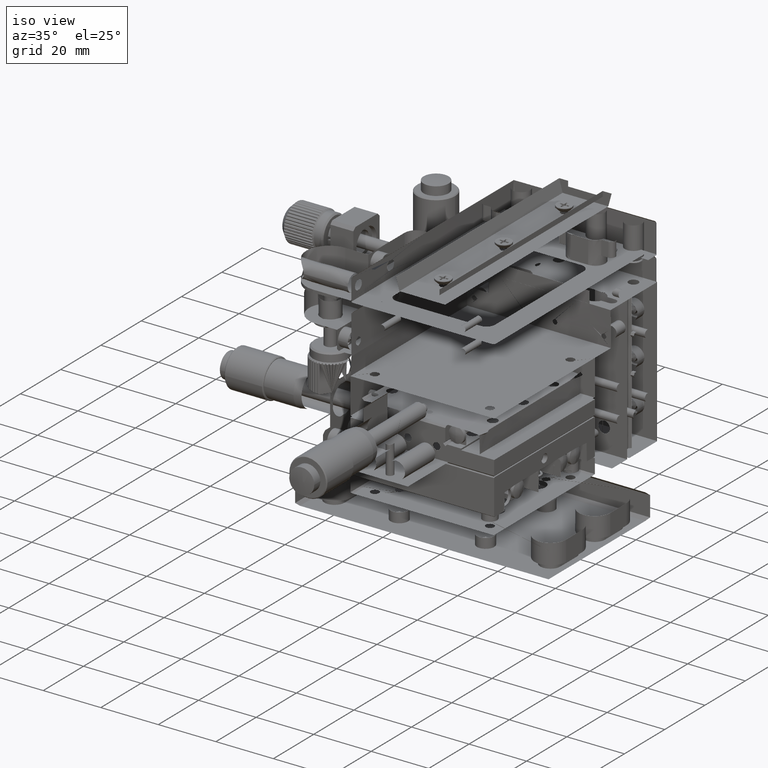
[diagram: clean part render]
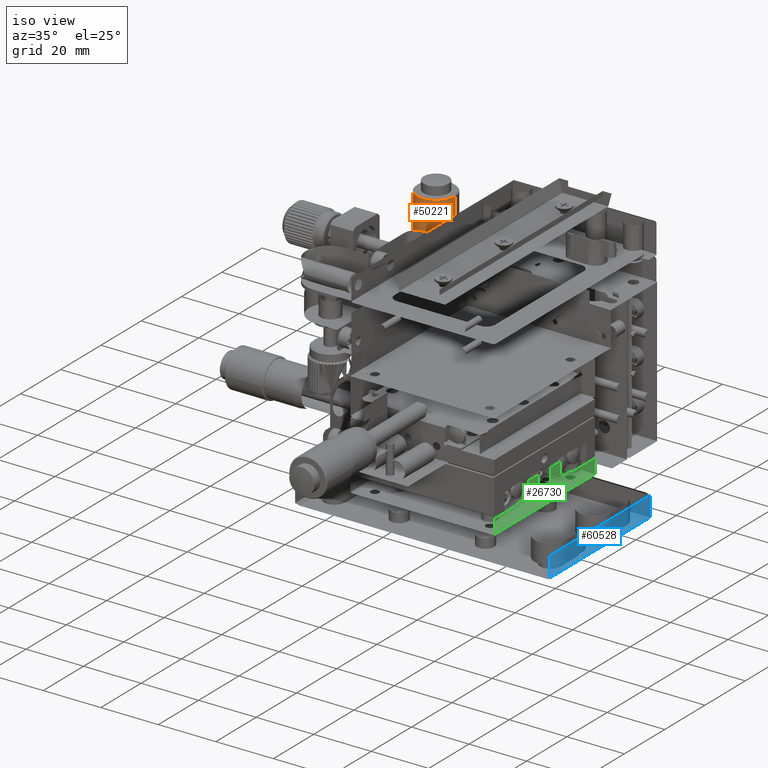
[diagram: same view with three faces highlighted in distinct colors, each labeled with its STEP entity id]
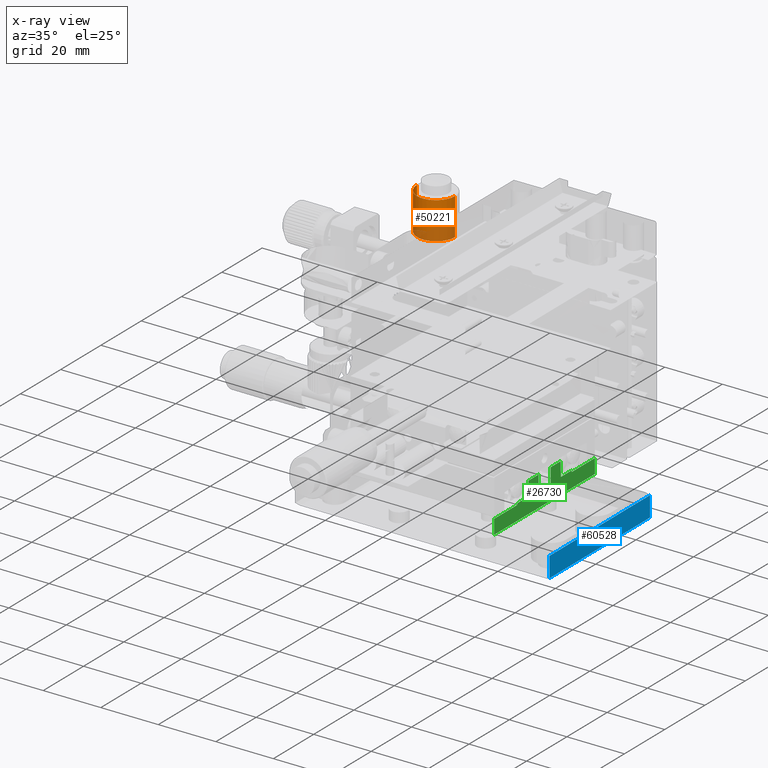
[diagram: x-ray of the same camera — body ghosted, the three highlighted faces saturated]
A machine part, iso view with three faces highlighted in distinct colors.
The next image is the same camera in x-ray (body ghosted, the three faces saturated) — at least one of them is partly hidden behind the body in this view.
Their STEP definitions:

[orange] entity #50221 — the highlighted face is a freeform B-spline surface patch.
#1579 = CARTESIAN_POINT ( 'NONE',  ( -54.55637179038090068, 46.40884961642780127, 68.49999999998939870 ) ) ;
#1641 = EDGE_CURVE ( 'NONE', #9086, #4916, #63539, .T. ) ;
#2454 = CARTESIAN_POINT ( 'NONE',  ( -41.35637179039149203, 33.20884961642774869, 68.49999999999998579 ) ) ;
#3393 = CARTESIAN_POINT ( 'NONE',  ( -47.95637179039150055, 39.80884961647790021, 55.60000000001669918 ) ) ;
#3716 = CARTESIAN_POINT ( 'NONE',  ( -44.65637179041652161, 39.80884961647795706, 55.60000000005008047 ) ) ;
#4021 = CARTESIAN_POINT ( 'NONE',  ( -54.55637179034140871, 42.00884961646123372, 55.60000000005007337 ) ) ;
#4755 = VERTEX_POINT ( 'NONE', #48372 ) ;
#4916 = VERTEX_POINT ( 'NONE', #20045 ) ;
#5196 = CARTESIAN_POINT ( 'NONE',  ( -41.35637179040204359, 46.40884961642780127, 68.49999999998939870 ) ) ;
#7349 = CARTESIAN_POINT ( 'NONE',  ( -54.55637179039150197, 46.40884961642780127, 55.59999999999999432 ) ) ;
#7662 = CARTESIAN_POINT ( 'NONE',  ( -41.35637179039149913, 46.40884961642780127, 55.59999999999999432 ) ) ;
#9086 = VERTEX_POINT ( 'NONE', #53956 ) ;
#10684 = EDGE_CURVE ( 'NONE', #61615, #4755, #61846, .T. ) ;
#16422 = CARTESIAN_POINT ( 'NONE',  ( -41.35637179039149203, 33.20884961642774869, 55.59999999999994458 ) ) ;
#18638 = CARTESIAN_POINT ( 'NONE',  ( -41.35637179044157818, 42.00884961646125504, 55.60000000005007337 ) ) ;
#19177 = CARTESIAN_POINT ( 'NONE',  ( -41.35637179040819689, 46.40884961642780127, 55.60000000001669918 ) ) ;
#20045 = CARTESIAN_POINT ( 'NONE',  ( -54.55637179037479711, 46.40884961642780127, 55.60000000001669918 ) ) ;
#20877 = CARTESIAN_POINT ( 'NONE',  ( -41.35637179040204359, 46.40884961642780127, 68.49999999998939870 ) ) ;
#23499 = ORIENTED_EDGE ( 'NONE', *, *, #10684, .F. ) ;
#23827 = CARTESIAN_POINT ( 'NONE',  ( -41.35637179040819689, 46.40884961642780127, 55.60000000001669918 ) ) ;
#24305 = EDGE_CURVE ( 'NONE', #4755, #4916, #26596, .T. ) ;
#25179 = B_SPLINE_CURVE_WITH_KNOTS ( 'NONE', 1,
 ( #19177, #47827 ),
 .UNSPECIFIED., .F., .F.,
 ( 2, 2 ),
 ( 0.000000000000000000, 1.000000000000000000 ),
 .UNSPECIFIED. ) ;
#26596 =( BOUNDED_CURVE ( )  B_SPLINE_CURVE ( 3, ( #63449, #48541, #4021, #39062 ),
 .UNSPECIFIED., .F., .F. ) 
 B_SPLINE_CURVE_WITH_KNOTS ( ( 4, 4 ),
 ( 0.000000000000000000, 1.000000000000000000 ),
 .UNSPECIFIED. ) 
 CURVE ( )  GEOMETRIC_REPRESENTATION_ITEM ( )  RATIONAL_B_SPLINE_CURVE ( ( 1.000000000000000000, 0.6666666666666660745, 0.4999999999999993339, 0.4999999999999995559 ) ) 
 REPRESENTATION_ITEM ( '' )  );
#28744 = CARTESIAN_POINT ( 'NONE',  ( -54.55637179037479711, 46.40884961642780127, 55.60000000001669918 ) ) ;
#29717 = EDGE_LOOP ( 'NONE', ( #59040, #60872, #40281, #29822, #23499 ) ) ;
#29822 = ORIENTED_EDGE ( 'NONE', *, *, #24305, .F. ) ;
#33606 = CARTESIAN_POINT ( 'NONE',  ( -54.55637179038090068, 46.40884961642780127, 68.49999999998939870 ) ) ;
#35050 = CARTESIAN_POINT ( 'NONE',  ( -54.55637179039145934, 33.20884961642775579, 68.49999999999997158 ) ) ;
#37841 = EDGE_CURVE ( 'NONE', #61615, #56086, #25179, .T. ) ;
#39062 = CARTESIAN_POINT ( 'NONE',  ( -54.55637179037479711, 46.40884961642780127, 55.60000000001669918 ) ) ;
#40281 = ORIENTED_EDGE ( 'NONE', *, *, #1641, .T. ) ;
#40788 = CARTESIAN_POINT ( 'NONE',  ( -41.35637179039149913, 46.40884961642780127, 68.50000000000000000 ) ) ;
#44301 =( BOUNDED_SURFACE ( )  B_SPLINE_SURFACE ( 3, 1, ( 
 ( #7349, #46325 ),
 ( #61913, #47290 ),
 ( #16422, #2454 ),
 ( #7662, #40788 ) ),
 .UNSPECIFIED., .F., .F., .F. ) 
 B_SPLINE_SURFACE_WITH_KNOTS ( ( 4, 4 ),
 ( 2, 2 ),
 ( 0.000000000000000000, 1.000000000000000000 ),
 ( 0.000000000000000000, 1.000000000000000000 ),
 .UNSPECIFIED. ) 
 GEOMETRIC_REPRESENTATION_ITEM ( )  RATIONAL_B_SPLINE_SURFACE ( (
 ( 1.000000000000000000, 1.000000000000000000),
 ( 0.3333333333333329818, 0.3333333333333329818),
 ( 0.3333333333333329818, 0.3333333333333329818),
 ( 1.000000000000000000, 1.000000000000000000) ) ) 
 REPRESENTATION_ITEM ( '' )  SURFACE ( )  );
#46325 = CARTESIAN_POINT ( 'NONE',  ( -54.55637179039150197, 46.40884961642780127, 68.50000000000000000 ) ) ;
#47290 = CARTESIAN_POINT ( 'NONE',  ( -54.55637179039145934, 33.20884961642774869, 68.49999999999998579 ) ) ;
#47827 = CARTESIAN_POINT ( 'NONE',  ( -41.35637179040204359, 46.40884961642780127, 68.49999999998939870 ) ) ;
#48372 = CARTESIAN_POINT ( 'NONE',  ( -47.95637179039150055, 39.80884961647790021, 55.60000000001669918 ) ) ;
#48541 = CARTESIAN_POINT ( 'NONE',  ( -51.25637179036645819, 39.80884961647790732, 55.60000000005008047 ) ) ;
#49510 = CARTESIAN_POINT ( 'NONE',  ( -41.35637179040819689, 46.40884961642780127, 55.60000000001669918 ) ) ;
#50221 = ADVANCED_FACE ( 'NONE', ( #52175 ), #44301, .T. ) ;
#52175 = FACE_OUTER_BOUND ( 'NONE', #29717, .T. ) ;
#53956 = CARTESIAN_POINT ( 'NONE',  ( -54.55637179038090068, 46.40884961642780127, 68.49999999998939870 ) ) ;
#55223 =( BOUNDED_CURVE ( )  B_SPLINE_CURVE ( 3, ( #5196, #60417, #35050, #1579 ),
 .UNSPECIFIED., .F., .F. ) 
 B_SPLINE_CURVE_WITH_KNOTS ( ( 4, 4 ),
 ( 0.000000000000000000, 1.000000000000000000 ),
 .UNSPECIFIED. ) 
 CURVE ( )  GEOMETRIC_REPRESENTATION_ITEM ( )  RATIONAL_B_SPLINE_CURVE ( ( 1.000000000000000000, 0.3333333333333329818, 0.3333333333333329818, 1.000000000000000000 ) ) 
 REPRESENTATION_ITEM ( '' )  );
#56086 = VERTEX_POINT ( 'NONE', #20877 ) ;
#59040 = ORIENTED_EDGE ( 'NONE', *, *, #37841, .T. ) ;
#60417 = CARTESIAN_POINT ( 'NONE',  ( -41.35637179039149913, 33.20884961642775579, 68.49999999999997158 ) ) ;
#60872 = ORIENTED_EDGE ( 'NONE', *, *, #62490, .T. ) ;
#61615 = VERTEX_POINT ( 'NONE', #49510 ) ;
#61846 =( BOUNDED_CURVE ( )  B_SPLINE_CURVE ( 3, ( #23827, #18638, #3716, #3393 ),
 .UNSPECIFIED., .F., .F. ) 
 B_SPLINE_CURVE_WITH_KNOTS ( ( 4, 4 ),
 ( 0.000000000000000000, 1.000000000000000000 ),
 .UNSPECIFIED. ) 
 CURVE ( )  GEOMETRIC_REPRESENTATION_ITEM ( )  RATIONAL_B_SPLINE_CURVE ( ( 0.4999999999999996114, 0.4999999999999996669, 0.6666666666666665186, 1.000000000000000000 ) ) 
 REPRESENTATION_ITEM ( '' )  );
#61913 = CARTESIAN_POINT ( 'NONE',  ( -54.55637179039145934, 33.20884961642774869, 55.59999999999994458 ) ) ;
#62490 = EDGE_CURVE ( 'NONE', #56086, #9086, #55223, .T. ) ;
#63449 = CARTESIAN_POINT ( 'NONE',  ( -47.95637179039150055, 39.80884961647790021, 55.60000000001669918 ) ) ;
#63539 = B_SPLINE_CURVE_WITH_KNOTS ( 'NONE', 1,
 ( #33606, #28744 ),
 .UNSPECIFIED., .F., .F.,
 ( 2, 2 ),
 ( 0.000000000000000000, 1.000000000000000000 ),
 .UNSPECIFIED. ) ;

[blue] entity #60528 — the highlighted face is a freeform B-spline surface patch.
#1249 = B_SPLINE_CURVE_WITH_KNOTS ( 'NONE', 1,
 ( #49977, #9709 ),
 .UNSPECIFIED., .F., .F.,
 ( 2, 2 ),
 ( 0.000000000000000000, 1.000000000000000000 ),
 .UNSPECIFIED. ) ;
#5472 = CARTESIAN_POINT ( 'NONE',  ( 39.74362820960845255, 27.40884961642790074, 3.500000000000000000 ) ) ;
#6442 = CARTESIAN_POINT ( 'NONE',  ( 39.74362820960839571, 27.40884961642790074, -3.500000000000000000 ) ) ;
#7992 = CARTESIAN_POINT ( 'NONE',  ( 39.74362820960850229, -22.59115038357210281, 3.500000000000000000 ) ) ;
#9268 = CARTESIAN_POINT ( 'NONE',  ( 39.74362820960845255, -22.59115038357210281, -3.500000000000000000 ) ) ;
#9709 = CARTESIAN_POINT ( 'NONE',  ( 39.74362820960839571, 27.40884961642790074, -3.500000000000000000 ) ) ;
#13195 = CARTESIAN_POINT ( 'NONE',  ( 39.74362820960845255, 27.40884961642790074, 3.500000000000000000 ) ) ;
#13437 = CARTESIAN_POINT ( 'NONE',  ( 39.74362820960839571, -22.59115038357210281, 3.500000000000000000 ) ) ;
#15803 = ORIENTED_EDGE ( 'NONE', *, *, #53524, .T. ) ;
#16605 = ORIENTED_EDGE ( 'NONE', *, *, #18024, .T. ) ;
#18021 = EDGE_LOOP ( 'NONE', ( #16605, #15803, #30664, #43893 ) ) ;
#18024 = EDGE_CURVE ( 'NONE', #47062, #42230, #63905, .T. ) ;
#19423 = CARTESIAN_POINT ( 'NONE',  ( 39.74362820960839571, 27.40884961642790074, -3.500000000000000000 ) ) ;
#19571 = CARTESIAN_POINT ( 'NONE',  ( 39.74362820960839571, -22.59115038357210281, -3.500000000000000000 ) ) ;
#26382 = CARTESIAN_POINT ( 'NONE',  ( 39.74362820960850229, -22.59115038357210281, 3.500000000000000000 ) ) ;
#29323 = CARTESIAN_POINT ( 'NONE',  ( 39.74362820960839571, 27.40884961642790074, 3.500000000000000000 ) ) ;
#30664 = ORIENTED_EDGE ( 'NONE', *, *, #54874, .F. ) ;
#33439 = CARTESIAN_POINT ( 'NONE',  ( 39.74362820960845255, -22.59115038357210281, -3.500000000000000000 ) ) ;
#37143 = EDGE_CURVE ( 'NONE', #47062, #39303, #1249, .T. ) ;
#39303 = VERTEX_POINT ( 'NONE', #19423 ) ;
#41686 = VERTEX_POINT ( 'NONE', #13195 ) ;
#42230 = VERTEX_POINT ( 'NONE', #26382 ) ;
#43490 = B_SPLINE_CURVE_WITH_KNOTS ( 'NONE', 1,
 ( #7992, #46016 ),
 .UNSPECIFIED., .F., .F.,
 ( 2, 2 ),
 ( -1.000000000000000000, 0.000000000000000000 ),
 .UNSPECIFIED. ) ;
#43893 = ORIENTED_EDGE ( 'NONE', *, *, #37143, .F. ) ;
#46016 = CARTESIAN_POINT ( 'NONE',  ( 39.74362820960845255, 27.40884961642790074, 3.500000000000000000 ) ) ;
#47062 = VERTEX_POINT ( 'NONE', #9268 ) ;
#49977 = CARTESIAN_POINT ( 'NONE',  ( 39.74362820960845255, -22.59115038357210281, -3.500000000000000000 ) ) ;
#52976 = CARTESIAN_POINT ( 'NONE',  ( 39.74362820960850229, -22.59115038357210281, 3.500000000000000000 ) ) ;
#53524 = EDGE_CURVE ( 'NONE', #42230, #41686, #43490, .T. ) ;
#54040 = FACE_OUTER_BOUND ( 'NONE', #18021, .T. ) ;
#54874 = EDGE_CURVE ( 'NONE', #39303, #41686, #58791, .T. ) ;
#58295 = CARTESIAN_POINT ( 'NONE',  ( 39.74362820960839571, 27.40884961642790074, -3.500000000000000000 ) ) ;
#58791 = B_SPLINE_CURVE_WITH_KNOTS ( 'NONE', 1,
 ( #6442, #5472 ),
 .UNSPECIFIED., .F., .F.,
 ( 2, 2 ),
 ( -1.000000000000000000, 0.000000000000000000 ),
 .UNSPECIFIED. ) ;
#60528 = ADVANCED_FACE ( 'NONE', ( #54040 ), #64314, .T. ) ;
#63905 = B_SPLINE_CURVE_WITH_KNOTS ( 'NONE', 1,
 ( #33439, #52976 ),
 .UNSPECIFIED., .F., .F.,
 ( 2, 2 ),
 ( -1.000000000000000000, 0.000000000000000000 ),
 .UNSPECIFIED. ) ;
#64314 = B_SPLINE_SURFACE_WITH_KNOTS ( 'NONE', 1, 1, ( 
 ( #29323, #13437 ),
 ( #58295, #19571 ) ),
 .UNSPECIFIED., .F., .F., .F.,
 ( 2, 2 ),
 ( 2, 2 ),
 ( 0.000000000000000000, 1.000000000000000000 ),
 ( 0.000000000000000000, 1.000000000000000000 ),
 .UNSPECIFIED. ) ;

[green] entity #26730 — the highlighted face is a freeform B-spline surface patch.
#185 = EDGE_CURVE ( 'NONE', #38807, #18904, #56090, .T. ) ;
#214 = B_SPLINE_CURVE_WITH_KNOTS ( 'NONE', 1,
 ( #55821, #11310 ),
 .UNSPECIFIED., .F., .F.,
 ( 2, 2 ),
 ( 0.000000000000000000, 1.000000000000000000 ),
 .UNSPECIFIED. ) ;
#311 = EDGE_CURVE ( 'NONE', #18904, #15350, #28771, .T. ) ;
#814 = EDGE_CURVE ( 'NONE', #3388, #3613, #38099, .T. ) ;
#1356 = CARTESIAN_POINT ( 'NONE',  ( 20.54362820960839997, -11.09115038357209926, 10.50000000000000000 ) ) ;
#1736 = ORIENTED_EDGE ( 'NONE', *, *, #10319, .T. ) ;
#2133 = EDGE_CURVE ( 'NONE', #13252, #53078, #23810, .T. ) ;
#3103 = B_SPLINE_CURVE_WITH_KNOTS ( 'NONE', 1,
 ( #11228, #50876 ),
 .UNSPECIFIED., .F., .F.,
 ( 2, 2 ),
 ( 0.000000000000000000, 1.000000000000000000 ),
 .UNSPECIFIED. ) ;
#3388 = VERTEX_POINT ( 'NONE', #27208 ) ;
#3613 = VERTEX_POINT ( 'NONE', #10620 ) ;
#4155 = CARTESIAN_POINT ( 'NONE',  ( 20.54362820960839997, -0.5911503835721350075, 15.50000000000000000 ) ) ;
#4479 = CARTESIAN_POINT ( 'NONE',  ( 20.54362820960839997, 5.408849616427869655, 10.00000000000000000 ) ) ;
#4699 = VERTEX_POINT ( 'NONE', #25968 ) ;
#4758 = CARTESIAN_POINT ( 'NONE',  ( 20.54362820960839997, 10.40884961642789897, 11.20710678118649817 ) ) ;
#5442 = FACE_OUTER_BOUND ( 'NONE', #36577, .T. ) ;
#6125 = ORIENTED_EDGE ( 'NONE', *, *, #311, .T. ) ;
#8671 = CARTESIAN_POINT ( 'NONE',  ( 20.54362820960839997, -22.59115038357210281, 5.000000000000000000 ) ) ;
#8674 = CARTESIAN_POINT ( 'NONE',  ( 20.54362820960839997, 10.40884961642789897, 15.50000000000000000 ) ) ;
#9279 = CARTESIAN_POINT ( 'NONE',  ( 20.54362820960839997, -22.59115038357210281, 10.00000000000000000 ) ) ;
#9627 = ORIENTED_EDGE ( 'NONE', *, *, #38406, .T. ) ;
#10005 = CARTESIAN_POINT ( 'NONE',  ( 20.54362820960839997, 27.40884961642790074, 5.000000000000000000 ) ) ;
#10319 = EDGE_CURVE ( 'NONE', #29505, #4699, #214, .T. ) ;
#10620 = CARTESIAN_POINT ( 'NONE',  ( 20.54362820960839997, -22.59115038357210281, 10.00000000000000000 ) ) ;
#10855 = CARTESIAN_POINT ( 'NONE',  ( 20.54362820960839997, -11.09115038357209926, 10.00000000000000000 ) ) ;
#11228 = CARTESIAN_POINT ( 'NONE',  ( 20.54362820960839997, 5.408849616427869655, 10.00000000000000000 ) ) ;
#11310 = CARTESIAN_POINT ( 'NONE',  ( 20.54362820960839997, 10.40884961642789897, 15.50000000000000000 ) ) ;
#11819 = ORIENTED_EDGE ( 'NONE', *, *, #2133, .T. ) ;
#12488 = ORIENTED_EDGE ( 'NONE', *, *, #22964, .T. ) ;
#12897 = B_SPLINE_CURVE_WITH_KNOTS ( 'NONE', 1,
 ( #18292, #48217 ),
 .UNSPECIFIED., .F., .F.,
 ( 2, 2 ),
 ( 0.000000000000000000, 1.000000000000000000 ),
 .UNSPECIFIED. ) ;
#13252 = VERTEX_POINT ( 'NONE', #35285 ) ;
#15058 = ORIENTED_EDGE ( 'NONE', *, *, #24761, .F. ) ;
#15076 = CARTESIAN_POINT ( 'NONE',  ( 20.54362820960839997, -22.59115038357210281, 5.000000000000000000 ) ) ;
#15350 = VERTEX_POINT ( 'NONE', #30494 ) ;
#16079 = CARTESIAN_POINT ( 'NONE',  ( 20.54362820960839997, -11.09115038357209926, 10.50000000000000000 ) ) ;
#16592 = EDGE_CURVE ( 'NONE', #3613, #46350, #53330, .T. ) ;
#16621 = CARTESIAN_POINT ( 'NONE',  ( 20.54362820960839997, -6.298257164758673810, 10.49999999999999822 ) ) ;
#17596 = EDGE_CURVE ( 'NONE', #4699, #13252, #29939, .T. ) ;
#18292 = CARTESIAN_POINT ( 'NONE',  ( 20.54362820960839997, -0.5911503835721320099, 10.00000000000000000 ) ) ;
#18852 = CARTESIAN_POINT ( 'NONE',  ( 20.54362820960839997, 15.90884961642790074, 10.00000000000000000 ) ) ;
#18904 = VERTEX_POINT ( 'NONE', #59152 ) ;
#20579 = ORIENTED_EDGE ( 'NONE', *, *, #16592, .T. ) ;
#22529 = CARTESIAN_POINT ( 'NONE',  ( 20.54362820960839997, -0.5911503835721350075, 15.50000000000000000 ) ) ;
#22964 = EDGE_CURVE ( 'NONE', #50690, #51395, #35387, .T. ) ;
#23329 = EDGE_CURVE ( 'NONE', #15350, #56974, #36078, .T. ) ;
#23688 = CARTESIAN_POINT ( 'NONE',  ( 20.54362820960839997, 15.90884961642790074, 10.50000000000000000 ) ) ;
#23810 = B_SPLINE_CURVE_WITH_KNOTS ( 'NONE', 1,
 ( #60454, #31175 ),
 .UNSPECIFIED., .F., .F.,
 ( 2, 2 ),
 ( 0.000000000000000000, 1.000000000000000000 ),
 .UNSPECIFIED. ) ;
#24330 = CARTESIAN_POINT ( 'NONE',  ( 20.54362820960839997, 15.90884961642790074, 10.00000000000000000 ) ) ;
#24761 = EDGE_CURVE ( 'NONE', #50690, #31827, #55310, .T. ) ;
#24961 = CARTESIAN_POINT ( 'NONE',  ( 20.54362820960839997, -0.5911503835721320099, 10.00000000000000000 ) ) ;
#25562 = CARTESIAN_POINT ( 'NONE',  ( 20.54362820960839997, 27.40884961642790074, 15.50000000000000000 ) ) ;
#25968 = CARTESIAN_POINT ( 'NONE',  ( 20.54362820960839997, 10.40884961642789897, 15.50000000000000000 ) ) ;
#26730 = ADVANCED_FACE ( 'NONE', ( #5442 ), #56859, .T. ) ;
#27208 = CARTESIAN_POINT ( 'NONE',  ( 20.54362820960839997, -22.59115038357210281, 5.000000000000000000 ) ) ;
#27543 = ORIENTED_EDGE ( 'NONE', *, *, #45295, .T. ) ;
#27809 = CARTESIAN_POINT ( 'NONE',  ( 20.54362820960839997, -11.09115038357209926, 10.00000000000000000 ) ) ;
#28603 = CARTESIAN_POINT ( 'NONE',  ( 20.54362820960839997, 27.40884961642790074, 5.000000000000000000 ) ) ;
#28771 = B_SPLINE_CURVE_WITH_KNOTS ( 'NONE', 1,
 ( #62945, #4155 ),
 .UNSPECIFIED., .F., .F.,
 ( 2, 2 ),
 ( 0.000000000000000000, 1.000000000000000000 ),
 .UNSPECIFIED. ) ;
#29505 = VERTEX_POINT ( 'NONE', #56318 ) ;
#29939 = B_SPLINE_CURVE_WITH_KNOTS ( 'NONE', 1,
 ( #8674, #4758 ),
 .UNSPECIFIED., .F., .F.,
 ( 2, 2 ),
 ( 0.000000000000000000, 1.000000000000000000 ),
 .UNSPECIFIED. ) ;
#29964 = ORIENTED_EDGE ( 'NONE', *, *, #185, .T. ) ;
#30494 = CARTESIAN_POINT ( 'NONE',  ( 20.54362820960839997, -0.5911503835721350075, 15.50000000000000000 ) ) ;
#31175 = CARTESIAN_POINT ( 'NONE',  ( 20.54362820960839997, 15.90884961642790074, 10.50000000000000000 ) ) ;
#31827 = VERTEX_POINT ( 'NONE', #32388 ) ;
#32260 = CARTESIAN_POINT ( 'NONE',  ( 20.54362820960839997, -0.5911503835721320099, 10.00000000000000000 ) ) ;
#32388 = CARTESIAN_POINT ( 'NONE',  ( 20.54362820960839997, 15.90884961642790074, 10.00000000000000000 ) ) ;
#33360 = EDGE_CURVE ( 'NONE', #48550, #46350, #44755, .T. ) ;
#34318 = B_SPLINE_CURVE_WITH_KNOTS ( 'NONE', 1,
 ( #23688, #24330 ),
 .UNSPECIFIED., .F., .F.,
 ( 2, 2 ),
 ( 0.000000000000000000, 1.000000000000000000 ),
 .UNSPECIFIED. ) ;
#35285 = CARTESIAN_POINT ( 'NONE',  ( 20.54362820960839997, 10.52528596704570063, 10.54320379723763956 ) ) ;
#35387 = B_SPLINE_CURVE_WITH_KNOTS ( 'NONE', 1,
 ( #53314, #28603 ),
 .UNSPECIFIED., .F., .F.,
 ( 2, 2 ),
 ( 0.000000000000000000, 1.000000000000000000 ),
 .UNSPECIFIED. ) ;
#35689 = CARTESIAN_POINT ( 'NONE',  ( 20.54362820960839997, -5.591150383572099258, 11.20710678118649639 ) ) ;
#35833 = CARTESIAN_POINT ( 'NONE',  ( 20.54362820960839997, 27.40884961642790074, 10.00000000000000000 ) ) ;
#36078 = B_SPLINE_CURVE_WITH_KNOTS ( 'NONE', 1,
 ( #22529, #32260 ),
 .UNSPECIFIED., .F., .F.,
 ( 2, 2 ),
 ( 0.000000000000000000, 1.000000000000000000 ),
 .UNSPECIFIED. ) ;
#36577 = EDGE_LOOP ( 'NONE', ( #20579, #42089, #55969, #29964, #6125, #46490, #59750, #27543, #1736, #62617, #11819, #56327, #15058, #12488, #9627, #45648 ) ) ;
#37887 = CARTESIAN_POINT ( 'NONE',  ( 20.54362820960839997, 27.40884961642790074, 5.000000000000000000 ) ) ;
#38099 = B_SPLINE_CURVE_WITH_KNOTS ( 'NONE', 1,
 ( #15076, #9279 ),
 .UNSPECIFIED., .F., .F.,
 ( 2, 2 ),
 ( 0.000000000000000000, 1.000000000000000000 ),
 .UNSPECIFIED. ) ;
#38406 = EDGE_CURVE ( 'NONE', #51395, #3388, #44487, .T. ) ;
#38807 = VERTEX_POINT ( 'NONE', #61895 ) ;
#42089 = ORIENTED_EDGE ( 'NONE', *, *, #33360, .F. ) ;
#44487 = B_SPLINE_CURVE_WITH_KNOTS ( 'NONE', 1,
 ( #37887, #8671 ),
 .UNSPECIFIED., .F., .F.,
 ( 2, 2 ),
 ( 0.000000000000000000, 1.000000000000000000 ),
 .UNSPECIFIED. ) ;
#44755 = B_SPLINE_CURVE_WITH_KNOTS ( 'NONE', 1,
 ( #56655, #62158 ),
 .UNSPECIFIED., .F., .F.,
 ( 2, 2 ),
 ( 0.000000000000000000, 1.000000000000000000 ),
 .UNSPECIFIED. ) ;
#45054 = CARTESIAN_POINT ( 'NONE',  ( 20.54362820960839997, -22.59115038357210281, 5.000000000000000000 ) ) ;
#45295 = EDGE_CURVE ( 'NONE', #62702, #29505, #3103, .T. ) ;
#45648 = ORIENTED_EDGE ( 'NONE', *, *, #814, .T. ) ;
#46350 = VERTEX_POINT ( 'NONE', #10855 ) ;
#46490 = ORIENTED_EDGE ( 'NONE', *, *, #23329, .T. ) ;
#48217 = CARTESIAN_POINT ( 'NONE',  ( 20.54362820960839997, 5.408849616427869655, 10.00000000000000000 ) ) ;
#48550 = VERTEX_POINT ( 'NONE', #16079 ) ;
#49709 = CARTESIAN_POINT ( 'NONE',  ( 20.54362820960839997, -5.591150383572140115, 15.50000000000000000 ) ) ;
#50690 = VERTEX_POINT ( 'NONE', #35833 ) ;
#50876 = CARTESIAN_POINT ( 'NONE',  ( 20.54362820960839997, 5.408849616427869655, 15.50000000000000000 ) ) ;
#51395 = VERTEX_POINT ( 'NONE', #56077 ) ;
#53078 = VERTEX_POINT ( 'NONE', #63021 ) ;
#53110 = EDGE_CURVE ( 'NONE', #53078, #31827, #34318, .T. ) ;
#53314 = CARTESIAN_POINT ( 'NONE',  ( 20.54362820960839997, 27.40884961642790074, 10.00000000000000000 ) ) ;
#53330 = B_SPLINE_CURVE_WITH_KNOTS ( 'NONE', 1,
 ( #57101, #27809 ),
 .UNSPECIFIED., .F., .F.,
 ( 2, 2 ),
 ( 0.000000000000000000, 1.000000000000000000 ),
 .UNSPECIFIED. ) ;
#54821 = CARTESIAN_POINT ( 'NONE',  ( 20.54362820960839997, -22.59115038357210281, 15.50000000000000000 ) ) ;
#55310 = B_SPLINE_CURVE_WITH_KNOTS ( 'NONE', 1,
 ( #62428, #18852 ),
 .UNSPECIFIED., .F., .F.,
 ( 2, 2 ),
 ( 0.000000000000000000, 1.000000000000000000 ),
 .UNSPECIFIED. ) ;
#55821 = CARTESIAN_POINT ( 'NONE',  ( 20.54362820960839997, 5.408849616427869655, 15.50000000000000000 ) ) ;
#55969 = ORIENTED_EDGE ( 'NONE', *, *, #64205, .T. ) ;
#56077 = CARTESIAN_POINT ( 'NONE',  ( 20.54362820960839997, 27.40884961642790074, 5.000000000000000000 ) ) ;
#56090 = B_SPLINE_CURVE_WITH_KNOTS ( 'NONE', 1,
 ( #35689, #49709 ),
 .UNSPECIFIED., .F., .F.,
 ( 2, 2 ),
 ( 0.000000000000000000, 1.000000000000000000 ),
 .UNSPECIFIED. ) ;
#56318 = CARTESIAN_POINT ( 'NONE',  ( 20.54362820960839997, 5.408849616427869655, 15.50000000000000000 ) ) ;
#56327 = ORIENTED_EDGE ( 'NONE', *, *, #53110, .T. ) ;
#56655 = CARTESIAN_POINT ( 'NONE',  ( 20.54362820960839997, -11.09115038357209926, 10.50000000000000000 ) ) ;
#56859 = B_SPLINE_SURFACE_WITH_KNOTS ( 'NONE', 1, 1, ( 
 ( #54821, #45054 ),
 ( #25562, #10005 ) ),
 .UNSPECIFIED., .F., .F., .F.,
 ( 2, 2 ),
 ( 2, 2 ),
 ( 0.000000000000000000, 1.000000000000000000 ),
 ( 0.000000000000000000, 1.000000000000000000 ),
 .UNSPECIFIED. ) ;
#56974 = VERTEX_POINT ( 'NONE', #24961 ) ;
#57101 = CARTESIAN_POINT ( 'NONE',  ( 20.54362820960839997, -22.59115038357210281, 10.00000000000000000 ) ) ;
#58620 = B_SPLINE_CURVE_WITH_KNOTS ( 'NONE', 1,
 ( #1356, #16621 ),
 .UNSPECIFIED., .F., .F.,
 ( 2, 2 ),
 ( 0.000000000000000000, 1.000000000000000000 ),
 .UNSPECIFIED. ) ;
#59152 = CARTESIAN_POINT ( 'NONE',  ( 20.54362820960839997, -5.591150383572140115, 15.50000000000000000 ) ) ;
#59535 = EDGE_CURVE ( 'NONE', #56974, #62702, #12897, .T. ) ;
#59750 = ORIENTED_EDGE ( 'NONE', *, *, #59535, .T. ) ;
#60454 = CARTESIAN_POINT ( 'NONE',  ( 20.54362820960839997, 11.11595639761439536, 10.50000000000000000 ) ) ;
#61895 = CARTESIAN_POINT ( 'NONE',  ( 20.54362820960839997, -5.707586734189971089, 10.54320379723763956 ) ) ;
#62158 = CARTESIAN_POINT ( 'NONE',  ( 20.54362820960839997, -11.09115038357209926, 10.00000000000000000 ) ) ;
#62428 = CARTESIAN_POINT ( 'NONE',  ( 20.54362820960839997, 27.40884961642790074, 10.00000000000000000 ) ) ;
#62617 = ORIENTED_EDGE ( 'NONE', *, *, #17596, .T. ) ;
#62702 = VERTEX_POINT ( 'NONE', #4479 ) ;
#62945 = CARTESIAN_POINT ( 'NONE',  ( 20.54362820960839997, -5.591150383572140115, 15.50000000000000000 ) ) ;
#63021 = CARTESIAN_POINT ( 'NONE',  ( 20.54362820960839997, 15.90884961642790074, 10.50000000000000000 ) ) ;
#64205 = EDGE_CURVE ( 'NONE', #48550, #38807, #58620, .T. ) ;